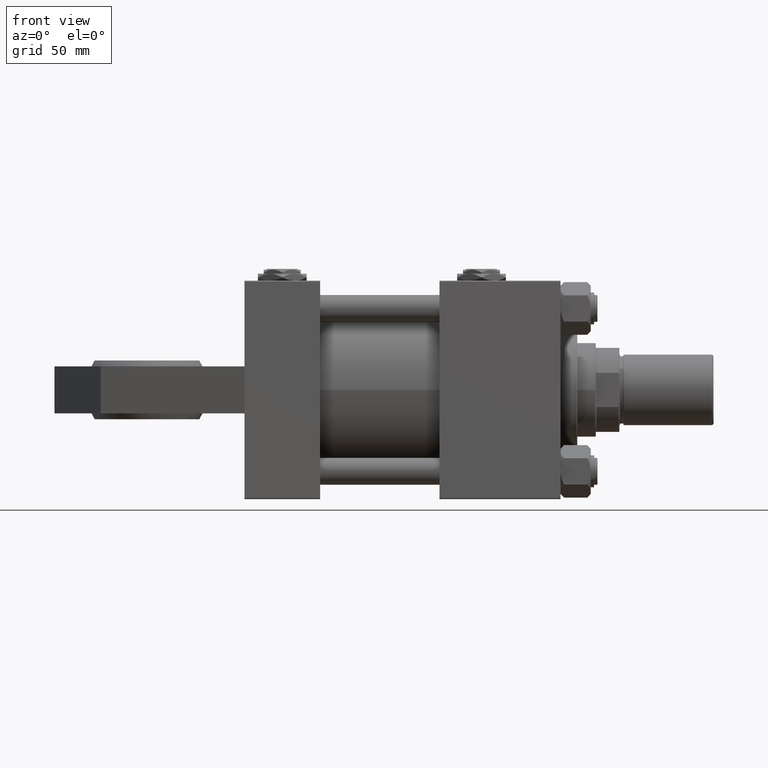
[diagram: clean part render]
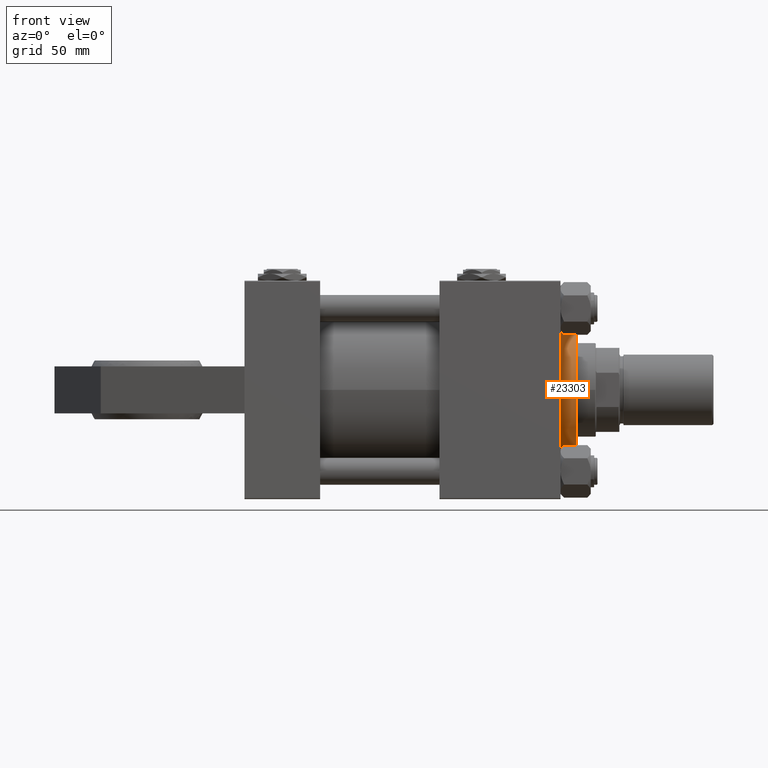
[diagram: same view with one face highlighted and labeled with its STEP entity id]
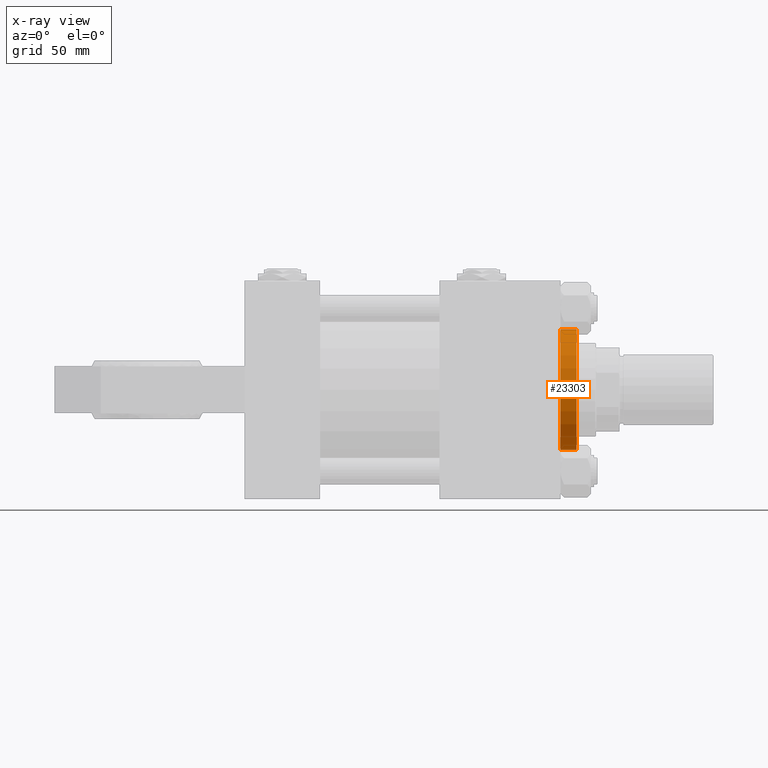
[diagram: x-ray of the same camera — body ghosted, the highlighted face saturated]
A machine part, front view. The second image highlights one B-rep face of the part: STEP entity #23303.
The next image is the same camera in x-ray: the body ghosted, the highlighted face saturated — about 2% of this face is hidden behind the body in this view.
In plain terms, the highlighted cylindrical surface (partial cylindrical patch) has radius 36 mm, axis along (-1, -0, 0).
Its self-contained STEP definition (entity closure, byte-faithful):
#147 = CARTESIAN_POINT ( 'NONE',  ( -36.00000000000000000, 0.000000000000000000, 26.69999999999999929 ) ) ;
#184 = VERTEX_POINT ( 'NONE', #13387 ) ;
#1529 = CARTESIAN_POINT ( 'NONE',  ( 36.00000000000000000, 4.408728476930470856E-15, 26.69999999999999929 ) ) ;
#2083 = CARTESIAN_POINT ( 'NONE',  ( 36.00000000000000000, 4.408728476930470856E-15, 36.69999999999999574 ) ) ;
#2187 = DIRECTION ( 'NONE',  ( 0.000000000000000000, 0.000000000000000000, 1.000000000000000000 ) ) ;
#9351 = EDGE_CURVE ( 'NONE', #184, #39899, #48280, .T. ) ;
#9825 = EDGE_CURVE ( 'NONE', #30039, #22871, #10440, .T. ) ;
#10025 = EDGE_CURVE ( 'NONE', #30039, #184, #40380, .T. ) ;
#10440 = LINE ( 'NONE', #2083, #49813 ) ;
#10801 = CARTESIAN_POINT ( 'NONE',  ( 0.000000000000000000, 0.000000000000000000, 36.69999999999999574 ) ) ;
#11422 = CARTESIAN_POINT ( 'NONE',  ( -36.00000000000000000, 0.000000000000000000, 36.69999999999999574 ) ) ;
#12412 = CIRCLE ( 'NONE', #22701, 36.00000000000000000 ) ;
#13081 = DIRECTION ( 'NONE',  ( 1.000000000000000000, 0.000000000000000000, 0.000000000000000000 ) ) ;
#13387 = CARTESIAN_POINT ( 'NONE',  ( -36.00000000000000000, 0.000000000000000000, 36.20000000000000284 ) ) ;
#15080 = CARTESIAN_POINT ( 'NONE',  ( 36.00000000000000000, 4.408728476930470856E-15, 36.20000000000000284 ) ) ;
#15634 = DIRECTION ( 'NONE',  ( -0.000000000000000000, -0.000000000000000000, -1.000000000000000000 ) ) ;
#17119 = ORIENTED_EDGE ( 'NONE', *, *, #9351, .T. ) ;
#17174 = AXIS2_PLACEMENT_3D ( 'NONE', #40807, #24923, #13081 ) ;
#19491 = DIRECTION ( 'NONE',  ( -0.000000000000000000, -0.000000000000000000, -1.000000000000000000 ) ) ;
#21375 = EDGE_LOOP ( 'NONE', ( #48249, #38501, #17119, #23565 ) ) ;
#22638 = FACE_OUTER_BOUND ( 'NONE', #21375, .T. ) ;
#22701 = AXIS2_PLACEMENT_3D ( 'NONE', #47388, #2187, #35010 ) ;
#22871 = VERTEX_POINT ( 'NONE', #1529 ) ;
#23303 = ADVANCED_FACE ( 'NONE', ( #22638 ), #39589, .T. ) ;
#23372 = EDGE_CURVE ( 'NONE', #39899, #22871, #12412, .T. ) ;
#23565 = ORIENTED_EDGE ( 'NONE', *, *, #23372, .T. ) ;
#24923 = DIRECTION ( 'NONE',  ( 0.000000000000000000, 0.000000000000000000, -1.000000000000000000 ) ) ;
#27209 = DIRECTION ( 'NONE',  ( -1.000000000000000000, 0.000000000000000000, 0.000000000000000000 ) ) ;
#30039 = VERTEX_POINT ( 'NONE', #15080 ) ;
#35010 = DIRECTION ( 'NONE',  ( 1.000000000000000000, 0.000000000000000000, 0.000000000000000000 ) ) ;
#38501 = ORIENTED_EDGE ( 'NONE', *, *, #10025, .T. ) ;
#39589 = CYLINDRICAL_SURFACE ( 'NONE', #41640, 36.00000000000000000 ) ;
#39899 = VERTEX_POINT ( 'NONE', #147 ) ;
#40380 = CIRCLE ( 'NONE', #17174, 36.00000000000000000 ) ;
#40807 = CARTESIAN_POINT ( 'NONE',  ( 0.000000000000000000, 0.000000000000000000, 36.20000000000000284 ) ) ;
#41640 = AXIS2_PLACEMENT_3D ( 'NONE', #10801, #15634, #27209 ) ;
#47388 = CARTESIAN_POINT ( 'NONE',  ( 0.000000000000000000, 0.000000000000000000, 26.69999999999999929 ) ) ;
#47547 = DIRECTION ( 'NONE',  ( -0.000000000000000000, -0.000000000000000000, -1.000000000000000000 ) ) ;
#48249 = ORIENTED_EDGE ( 'NONE', *, *, #9825, .F. ) ;
#48280 = LINE ( 'NONE', #11422, #53216 ) ;
#49813 = VECTOR ( 'NONE', #47547, 1000.000000000000000 ) ;
#53216 = VECTOR ( 'NONE', #19491, 1000.000000000000000 ) ;